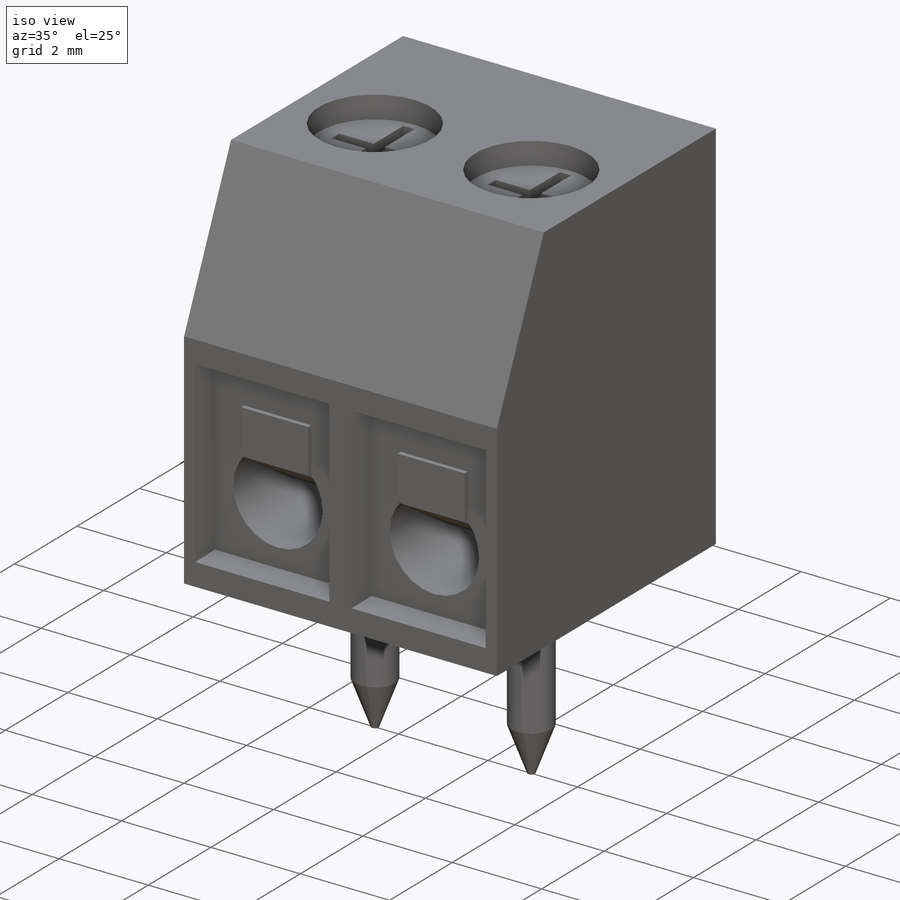
[diagram: iso view]
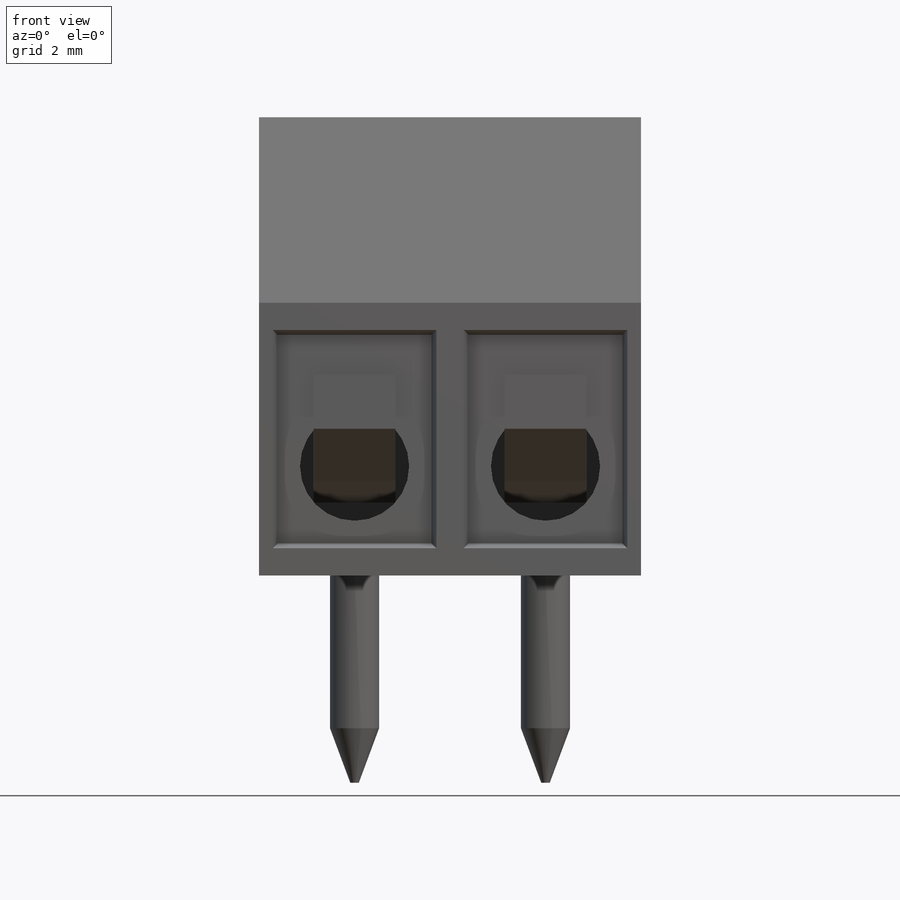
[diagram: front view]
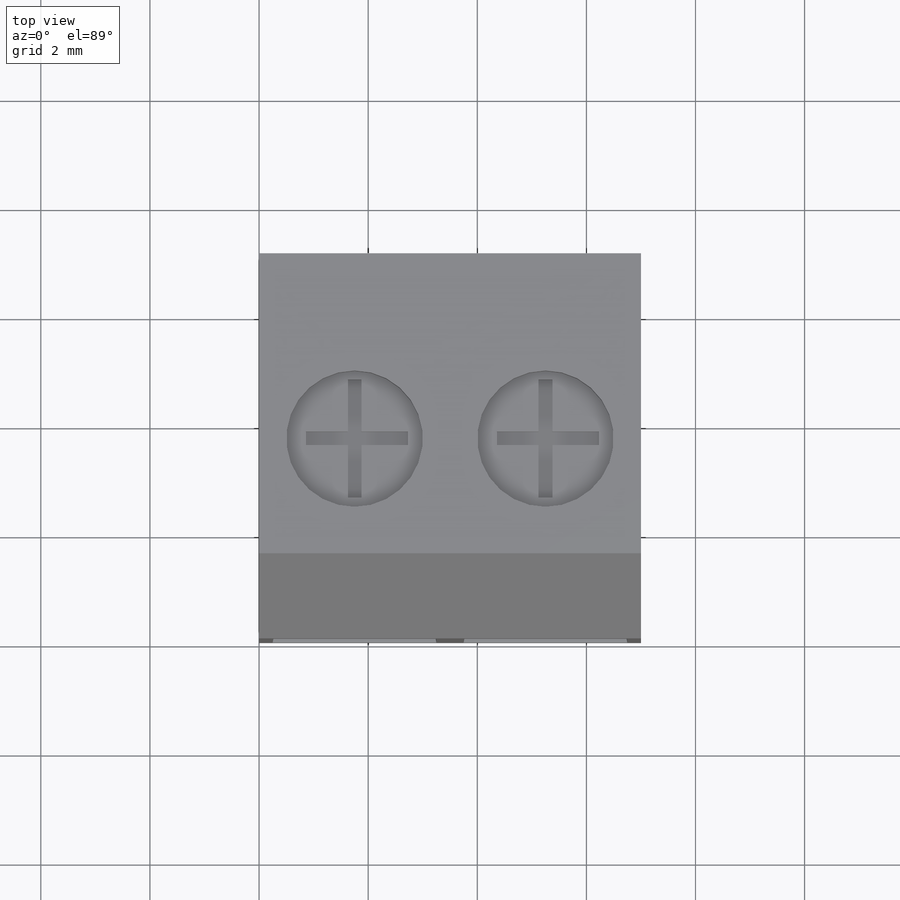
[diagram: top view]
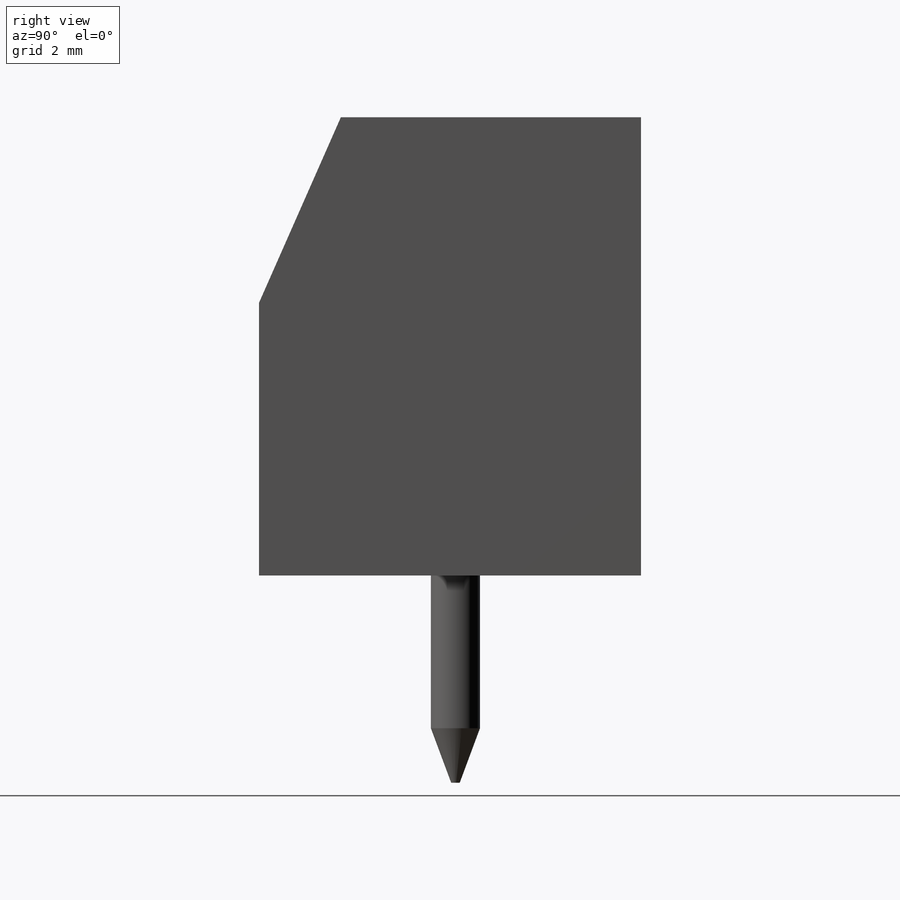
[diagram: right view]
SOLIDWORKS PART (.sldprt)
format: sldprt  version: not decoded by parser v0  size: 295,936 bytes
history: native  units: mm
features: sketch x7, cut_extrude x3, extrude x2, material x1, plane x1, chamfer x1, pattern_linear x1 (+13 scaffold rows collapsed)
feature tree (29):
  scaffold x13  (default folders/planes/origin — collapsed)
  material  "Material <not specified>"
  sketch  "Sketch1"  dims[c1.D1=7.0mm c1.D2=8.4mm c1.D3=5.0mm c1.D4=5.5mm c2.D1=7.0mm]
  extrude  "Boss-Extrude1"  Depth=7mm
  sketch  "Sketch2"  dims[D1=2.5mm D2=3.4mm D3=1.75mm]
  cut_extrude  "Cut-Extrude1"  Depth=0.5mm
  sketch  "Sketch3"  dims[D1=0.25mm D2=3.0mm D3=0.5mm D4=0.5mm]
  cut_extrude  "Cut-Extrude2"  Depth=0.5mm
  sketch  "Sketch4"  dims[D1=2.0mm D2=1.5mm]
  cut_extrude  "Cut-Extrude3"  Depth=6mm
  plane  "Plane1"  Offset=1.75mm
  sketch  "Sketch6"  dims[D1=0.9mm D2=3.4mm]
  extrude  "Boss-Extrude3"  Depth=3.8mm
  chamfer  "Chamfer1"  Distance=1mm Angle=20.4deg
  sketch  "Sketch7"  dims[D1=1.5mm D5=0.1mm D6=10.0mm D7=5.0mm]
  sketch  "Sketch8"  dims[D1=0.5mm D5=0.25mm D6=10.0mm D7=5.0mm]
  pattern_linear  "LPattern1"  Count1=2 Count2=1 Spacing1=3.5mm Spacing2=10mm
decode coverage: 14 of 14 modeling features carry decoded parameters
note: suppression state not decoded; provenance and decode notes live in map.json
